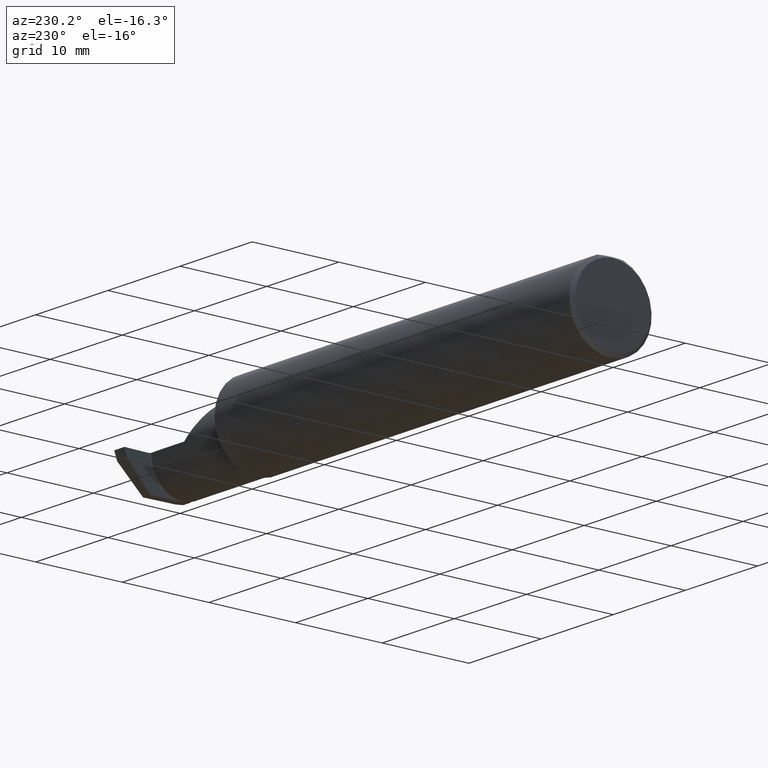
[diagram: clean part render]
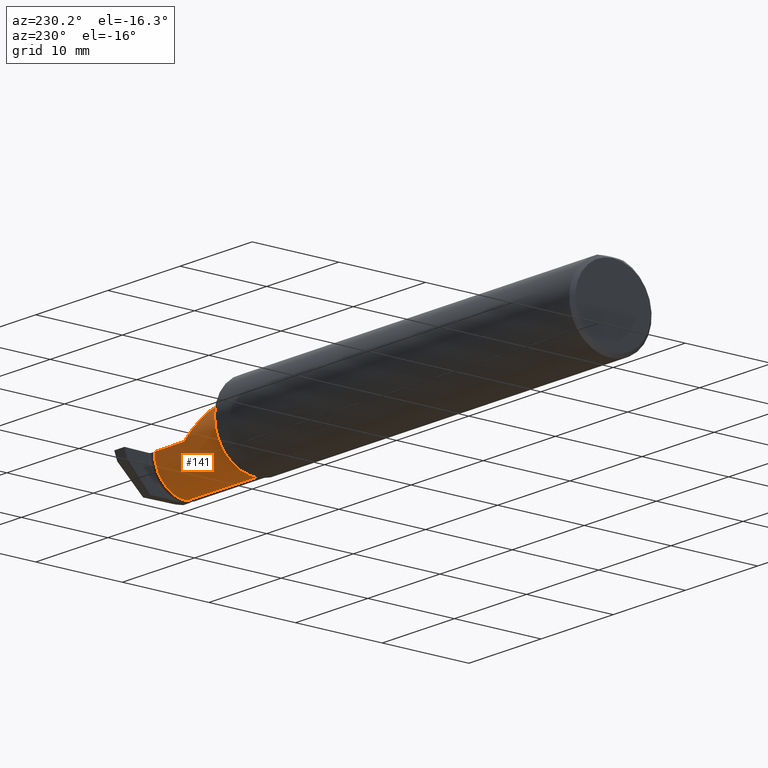
[diagram: same view with one face highlighted and labeled with its STEP entity id]
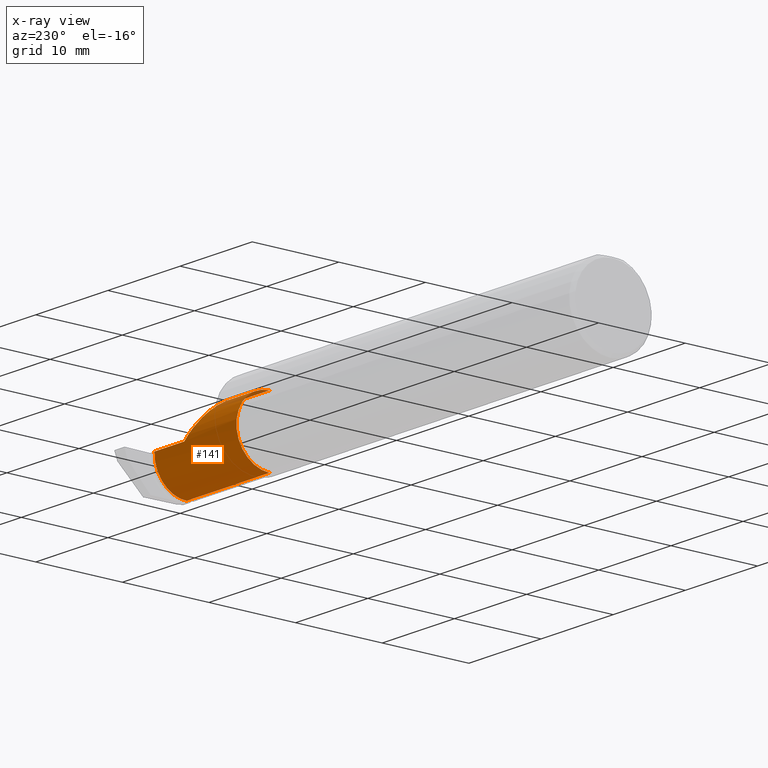
[diagram: x-ray of the same camera — body ghosted, the highlighted face saturated]
A machine part, auxiliary view. The second image highlights one B-rep face of the part: STEP entity #141.
The next image is the same camera in x-ray: the body ghosted, the highlighted face saturated — about 3% of this face is hidden behind the body in this view.
In plain terms, the highlighted cylindrical surface (partial cylindrical patch) has radius 3.81 mm, axis along (-1, -0, -0).
Its self-contained STEP definition (entity closure, byte-faithful):
#4 = CARTESIAN_POINT ( 'NONE',  ( 1.949999999999999956, 0.06665000000000001479, 6.735557395310447447E-17 ) ) ;
#39 = CARTESIAN_POINT ( 'NONE',  ( 1.974999999999999867, -0.08334999999999995191, -0.1499999999999999667 ) ) ;
#46 = AXIS2_PLACEMENT_3D ( 'NONE', #727, #825, #752 ) ;
#63 = CARTESIAN_POINT ( 'NONE',  ( 2.424584092740096342, 0.05145648345425777453, -0.06650224094228217309 ) ) ;
#65 = CARTESIAN_POINT ( 'NONE',  ( 2.110000000000001208, 0.004517965644035767080, 0.1499999999999999667 ) ) ;
#71 = EDGE_CURVE ( 'NONE', #861, #327, #222, .T. ) ;
#77 = CARTESIAN_POINT ( 'NONE',  ( 2.427823194575348786, -0.06360486144407802300, -0.1500000000000002720 ) ) ;
#87 = LINE ( 'NONE', #493, #691 ) ;
#102 =( BOUNDED_CURVE ( )  B_SPLINE_CURVE ( 3, ( #468, #65, #319, #138 ),
 .UNSPECIFIED., .F., .T. ) 
 B_SPLINE_CURVE_WITH_KNOTS ( ( 4, 4 ),
 ( 0.000000000000000000, 1.570796326794896558 ),
 .UNSPECIFIED. ) 
 CURVE ( )  GEOMETRIC_REPRESENTATION_ITEM ( )  RATIONAL_B_SPLINE_CURVE ( ( 1.000000000000000000, 0.8047378541243649375, 0.8047378541243649375, 1.000000000000000000 ) ) 
 REPRESENTATION_ITEM ( '' )  );
#115 = ORIENTED_EDGE ( 'NONE', *, *, #396, .F. ) ;
#125 = EDGE_CURVE ( 'NONE', #588, #299, #796, .T. ) ;
#138 = CARTESIAN_POINT ( 'NONE',  ( 2.260000000000000231, 0.06664999999999998703, 2.939152317953647352E-17 ) ) ;
#141 = ADVANCED_FACE ( 'NONE', ( #189 ), #909, .T. ) ;
#144 = CARTESIAN_POINT ( 'NONE',  ( 2.422759758554750675, 0.06664999999999032809, -0.01979751685986047907 ) ) ;
#160 = VERTEX_POINT ( 'NONE', #257 ) ;
#189 = FACE_OUTER_BOUND ( 'NONE', #202, .T. ) ;
#195 = DIRECTION ( 'NONE',  ( 0.000000000000000000, 0.000000000000000000, 1.000000000000000000 ) ) ;
#202 = EDGE_LOOP ( 'NONE', ( #420, #934, #1039, #115, #733, #845 ) ) ;
#222 = B_SPLINE_CURVE_WITH_KNOTS ( 'NONE', 3,
 ( #224, #144, #638, #63, #958, #400, #547, #303, #952, #795, #391, #624, #77, #864 ),
 .UNSPECIFIED., .F., .F.,
 ( 4, 2, 2, 2, 2, 2, 4 ),
 ( 1.072437431523269895E-15, 0.001502808940942013333, 0.002254213411412484078, 0.003005617881882955041, 0.003757022352353426003, 0.004508426822823896965, 0.006011235763764839757 ),
 .UNSPECIFIED. ) ;
#224 = CARTESIAN_POINT ( 'NONE',  ( 2.422000000000233300, 0.06664999999976645162, 8.581691664019148845E-18 ) ) ;
#257 = CARTESIAN_POINT ( 'NONE',  ( 2.260000000000000231, 0.06664999999999998703, 2.939152317953647352E-17 ) ) ;
#287 = AXIS2_PLACEMENT_3D ( 'NONE', #509, #667, #195 ) ;
#299 = VERTEX_POINT ( 'NONE', #39 ) ;
#301 = LINE ( 'NONE', #714, #906 ) ;
#303 = CARTESIAN_POINT ( 'NONE',  ( 2.426340558372175771, 0.01578456803627682412, -0.1129971907252622643 ) ) ;
#319 = CARTESIAN_POINT ( 'NONE',  ( 2.172132034355964691, 0.06665000000000000091, 0.08786796564403574761 ) ) ;
#327 = VERTEX_POINT ( 'NONE', #398 ) ;
#341 = DIRECTION ( 'NONE',  ( 1.000000000000000000, 0.000000000000000000, 0.000000000000000000 ) ) ;
#343 = EDGE_CURVE ( 'NONE', #413, #160, #102, .T. ) ;
#375 = EDGE_CURVE ( 'NONE', #327, #299, #301, .T. ) ;
#391 = CARTESIAN_POINT ( 'NONE',  ( 2.427195285510634459, -0.01680787242513358953, -0.1347941465725702170 ) ) ;
#396 = EDGE_CURVE ( 'NONE', #413, #588, #87, .T. ) ;
#398 = CARTESIAN_POINT ( 'NONE',  ( 2.427802735541597201, -0.08335000000000182541, -0.1499999999999999667 ) ) ;
#400 = CARTESIAN_POINT ( 'NONE',  ( 2.425501685802614826, 0.03584079103330130300, -0.09159665204916878078 ) ) ;
#413 = VERTEX_POINT ( 'NONE', #905 ) ;
#420 = ORIENTED_EDGE ( 'NONE', *, *, #71, .T. ) ;
#445 = CARTESIAN_POINT ( 'NONE',  ( 1.974999999999999867, -0.08334999999999996578, 0.1499999999999999667 ) ) ;
#452 = EDGE_CURVE ( 'NONE', #160, #861, #823, .T. ) ;
#468 = CARTESIAN_POINT ( 'NONE',  ( 2.110000000000001208, -0.08334999999999996578, 0.1499999999999999667 ) ) ;
#493 = CARTESIAN_POINT ( 'NONE',  ( 1.949999999999999956, -0.08334999999999996578, 0.1499999999999999667 ) ) ;
#509 = CARTESIAN_POINT ( 'NONE',  ( 1.974999999999999867, -0.08334999999999996578, 0.000000000000000000 ) ) ;
#547 = CARTESIAN_POINT ( 'NONE',  ( 2.425778718047604698, 0.02964324836728062310, -0.09913906149924223143 ) ) ;
#574 = CARTESIAN_POINT ( 'NONE',  ( 2.422000000000233300, 0.06664999999976645162, 8.581691664019148845E-18 ) ) ;
#588 = VERTEX_POINT ( 'NONE', #445 ) ;
#624 = CARTESIAN_POINT ( 'NONE',  ( 2.427601074765382450, -0.04414771950163908637, -0.1461247685144350661 ) ) ;
#638 = CARTESIAN_POINT ( 'NONE',  ( 2.423485480596589969, 0.06268191133669466508, -0.03944648270689479763 ) ) ;
#667 = DIRECTION ( 'NONE',  ( -1.000000000000000000, -0.000000000000000000, -0.000000000000000000 ) ) ;
#691 = VECTOR ( 'NONE', #730, 39.37007874015748143 ) ;
#714 = CARTESIAN_POINT ( 'NONE',  ( 1.949999999999999956, -0.08334999999999995191, -0.1499999999999999667 ) ) ;
#727 = CARTESIAN_POINT ( 'NONE',  ( 1.949999999999999956, -0.08334999999999996578, 0.000000000000000000 ) ) ;
#730 = DIRECTION ( 'NONE',  ( -1.000000000000000000, -0.000000000000000000, -0.000000000000000000 ) ) ;
#733 = ORIENTED_EDGE ( 'NONE', *, *, #343, .T. ) ;
#752 = DIRECTION ( 'NONE',  ( 0.000000000000000000, 0.000000000000000000, 1.000000000000000000 ) ) ;
#795 = CARTESIAN_POINT ( 'NONE',  ( 2.427047496117511916, -0.008191918241062657105, -0.1301800487432523412 ) ) ;
#796 = CIRCLE ( 'NONE', #287, 0.1499999999999999667 ) ;
#798 = DIRECTION ( 'NONE',  ( -1.000000000000000000, -0.000000000000000000, -0.000000000000000000 ) ) ;
#823 = LINE ( 'NONE', #4, #837 ) ;
#825 = DIRECTION ( 'NONE',  ( -1.000000000000000000, -0.000000000000000000, -0.000000000000000000 ) ) ;
#837 = VECTOR ( 'NONE', #341, 39.37007874015748143 ) ;
#845 = ORIENTED_EDGE ( 'NONE', *, *, #452, .T. ) ;
#861 = VERTEX_POINT ( 'NONE', #574 ) ;
#864 = CARTESIAN_POINT ( 'NONE',  ( 2.427802735541597201, -0.08335000000000182541, -0.1499999999999999667 ) ) ;
#905 = CARTESIAN_POINT ( 'NONE',  ( 2.110000000000001208, -0.08334999999999996578, 0.1499999999999999667 ) ) ;
#906 = VECTOR ( 'NONE', #798, 39.37007874015748143 ) ;
#909 = CYLINDRICAL_SURFACE ( 'NONE', #46, 0.1499999999999999667 ) ;
#934 = ORIENTED_EDGE ( 'NONE', *, *, #375, .T. ) ;
#952 = CARTESIAN_POINT ( 'NONE',  ( 2.426625743432188731, 0.008070056117681986482, -0.1193229051101193233 ) ) ;
#958 = CARTESIAN_POINT ( 'NONE',  ( 2.424917640981596012, 0.04676325875629793599, -0.07527902250678634999 ) ) ;
#1039 = ORIENTED_EDGE ( 'NONE', *, *, #125, .F. ) ;